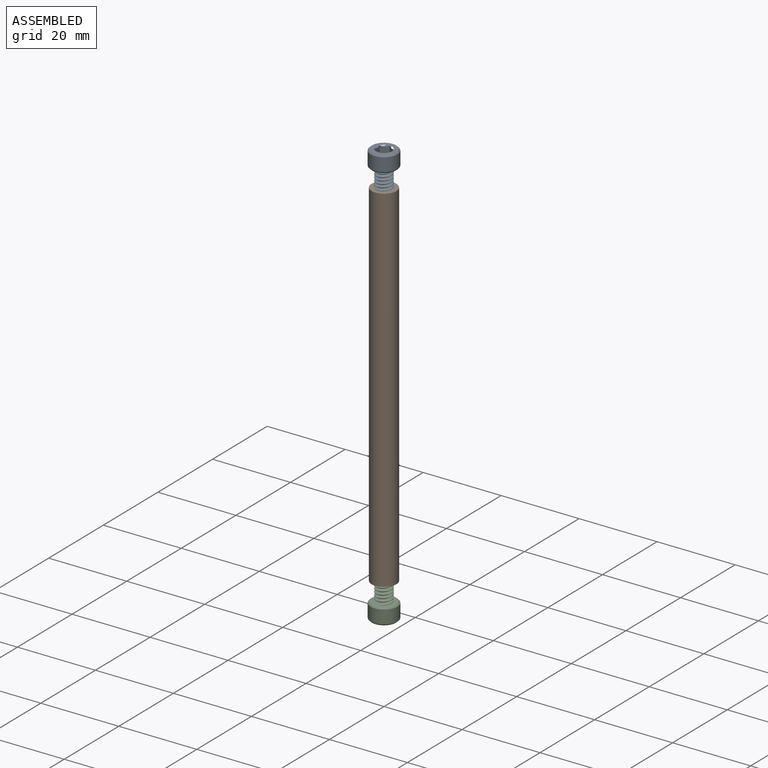
[diagram: assembled view]
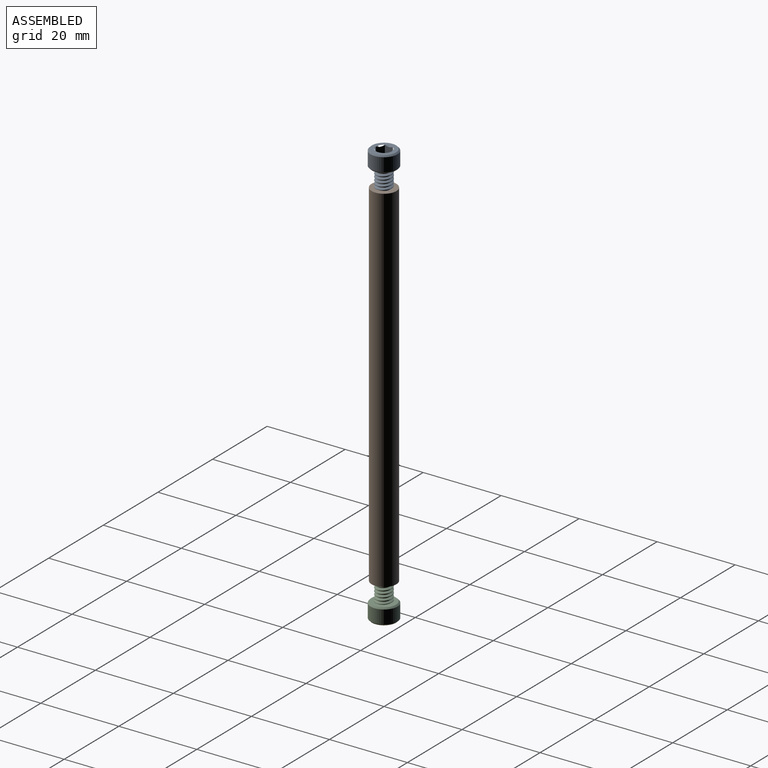
[diagram: assembled view, second angle]
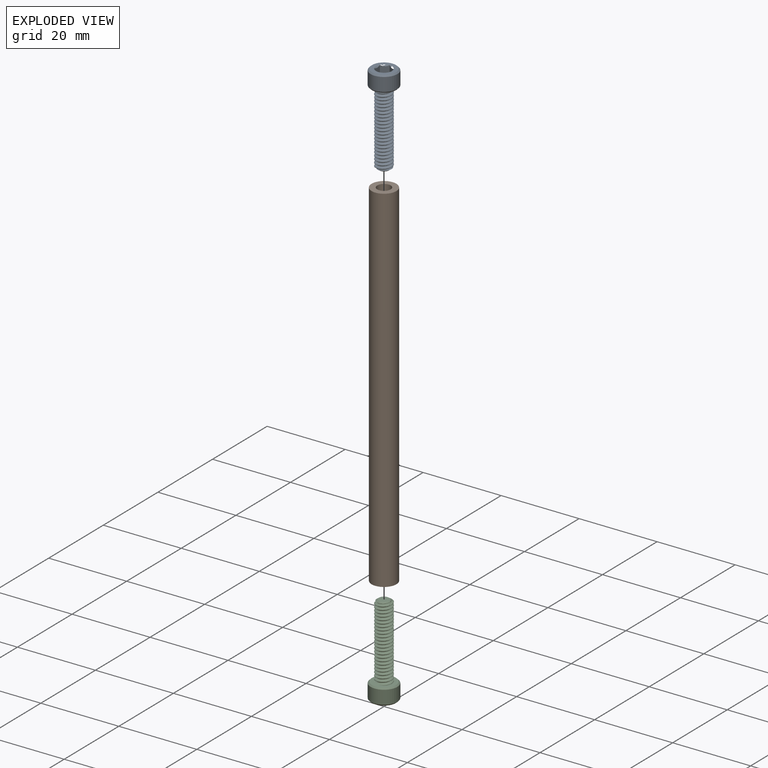
[diagram: exploded view]
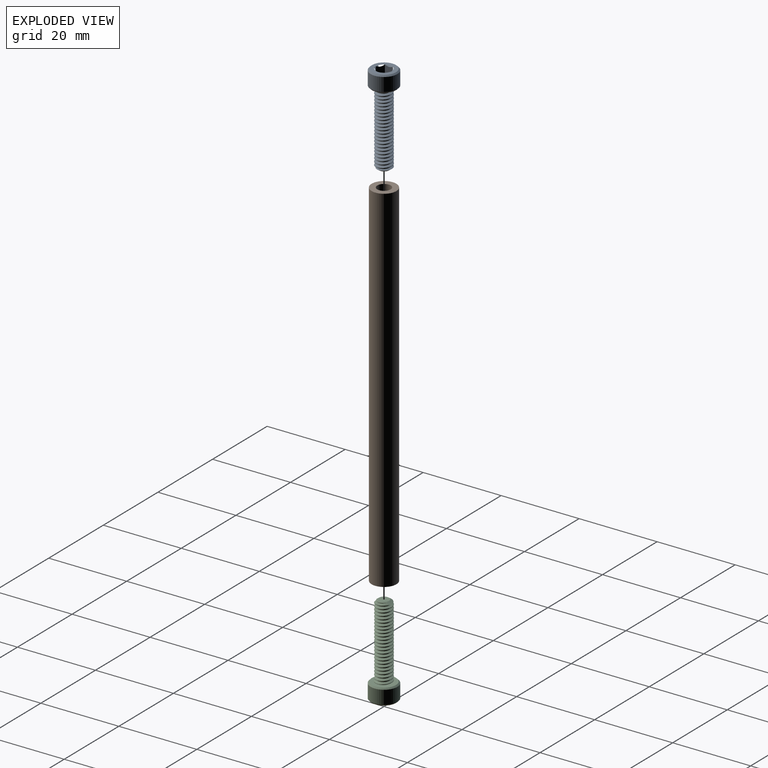
[diagram: exploded view, second angle]
ASSEMBLY  parts=3 mates=2
PART A: 24 faces, bbox 7.6x7.6x24.2 mm
  f0: cylinder r=2.08mm len=18.51mm, axis (0,0,1), area 46.6mm2, adj f1,f2,f4,f8
  f1: bspline ~19.61x4.81mm, area 161.3mm2, adj f0,f3,f4,f8
  f2: bspline ~19.35x4.81mm, area 160.8mm2, adj f0,f3,f4,f8
  f3: cylinder r=1.57mm len=18.87mm, axis (0,0,-1), area 54.8mm2, adj f1,f2,f4,f8
  f4: cone r=1.31mm half-angle=55deg, axis (0,0,-1), area 6.3mm2, adj f0,f1,f2,f3,f5
  f5: plane 2.63x2.63mm, normal (0,0,1), area 5.4mm2, adj f4
  f6: cylinder r=3.43mm len=6.86mm, axis (0,0,1), area 75mm2, adj f22,f23
  f7: plane 6.86x6.86mm, normal (0,0,-1), area 16.6mm2, adj f9,f10,f11,f12,f13,f14,f22
  f8: plane 6.48x6.48mm, normal (0,0,1), area 19.4mm2, adj f0,f1,f2,f3,f23
  f9: cone r=2.06mm half-angle=45deg, axis (0,0,-1), area 0mm2, adj f7,f16
  f10: cone r=2.06mm half-angle=45deg, axis (0,0,-1), area 0mm2, adj f7,f17
  f11: cone r=2.06mm half-angle=45deg, axis (0,0,-1), area 0mm2, adj f7,f18
  f12: cone r=2.06mm half-angle=45deg, axis (0,0,-1), area 0mm2, adj f7,f19
  f13: cone r=2.06mm half-angle=45deg, axis (0,0,-1), area 0mm2, adj f7,f20
  f14: cone r=2.06mm half-angle=45deg, axis (0,0,-1), area 0mm2, adj f7,f21
  f15: plane 4.12x3.57mm, normal (0,0,-1), area 11mm2, adj f16,f17,f18,f19,f20,f21
  f16: plane 3.46x2.57mm, normal (-0.5,-0.87,0), area 5.2mm2, adj f9,f15,f17,f21
  f17: plane 3.46x2.85mm, normal (-1,0,0), area 5.2mm2, adj f10,f15,f16,f18
  f18: plane 3.46x2.57mm, normal (-0.5,0.87,0), area 5.2mm2, adj f11,f15,f17,f19
  f19: plane 3.46x2.57mm, normal (0.5,0.87,0), area 5.2mm2, adj f12,f15,f18,f20
  f20: plane 3.46x2.85mm, normal (1,0,0), area 5.2mm2, adj f13,f15,f19,f21
  f21: plane 3.46x2.57mm, normal (0.5,-0.87,0), area 5.2mm2, adj f14,f15,f16,f20
  f22: cone r=3.09mm half-angle=45deg, axis (0,0,1), area 9.9mm2, adj f6,f7
  f23: cone r=3.43mm half-angle=45deg, axis (0,0,-1), area 9.9mm2, adj f6,f8
PART B: 7 faces, bbox 6.4x6.4x91.1 mm
  f0: cylinder r=3.17mm len=91.14mm, axis (0,0,-1), area 1818.1mm2, adj f1,f2
  f1: plane 6.35x6.35mm, normal (0,0,1), area 22.3mm2, adj f0,f4
  f2: plane 6.35x6.35mm, normal (0,0,-1), area 22.3mm2, adj f0,f6
  f3: cone r=1.73mm half-angle=59deg, axis (0,0,1), area 10.9mm2, adj f4
  f4: cylinder r=1.73mm len=12.29mm, axis (0,0,1), area 133.4mm2, adj f1,f3
  f5: cone r=1.73mm half-angle=59deg, axis (0,0,-1), area 10.9mm2, adj f6
  f6: cylinder r=1.73mm len=12.29mm, axis (0,0,-1), area 133.4mm2, adj f2,f5
PART C: same geometry as A
PLACE A rot(axis=(1,0,0),180deg) t=(0,0,76.85)mm
PLACE B t=(0,0,45.57)mm fixed
PLACE C rot(axis=(0,0,1),180deg) t=(0,0,14.29)mm
MATE revolute A.f0 <-> B.f0  axis (0,0,-1) through (0,0,95.9)mm
MATE fastened C.f0 <-> B.f0  axis (0,0,1) through (0,0,-4.76)mm
